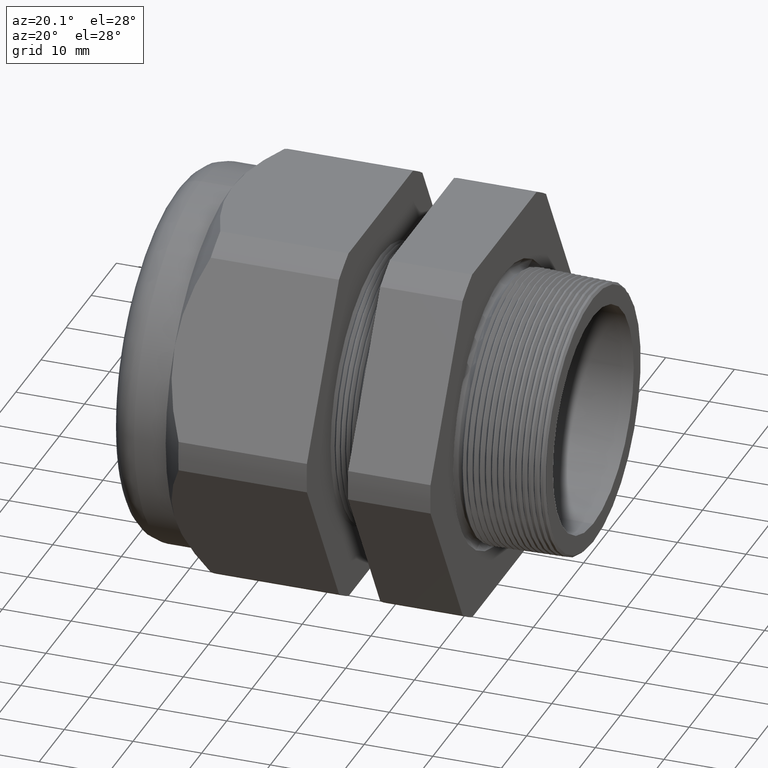
[diagram: clean part render]
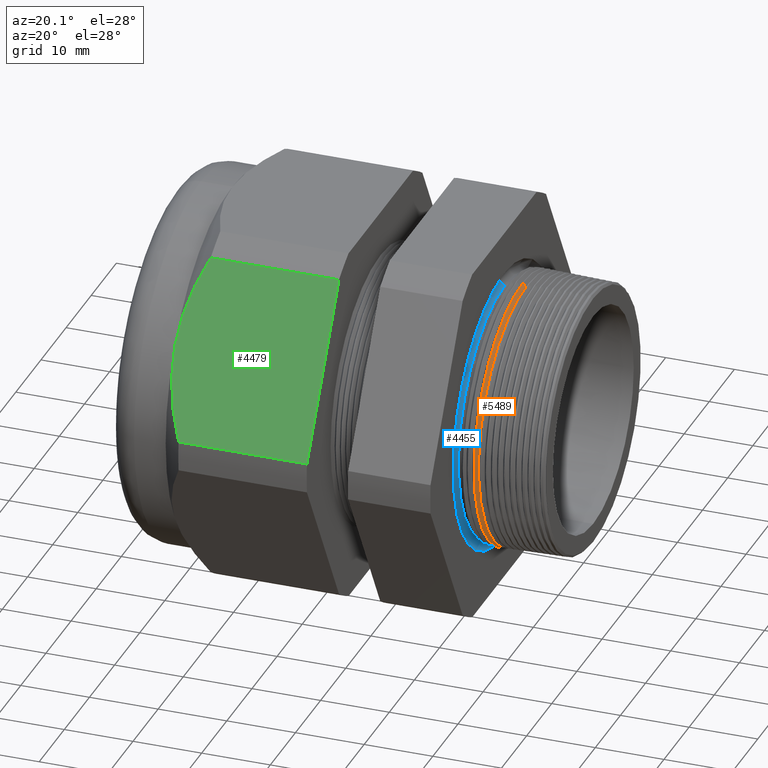
[diagram: same view with three faces highlighted in distinct colors, each labeled with its STEP entity id]
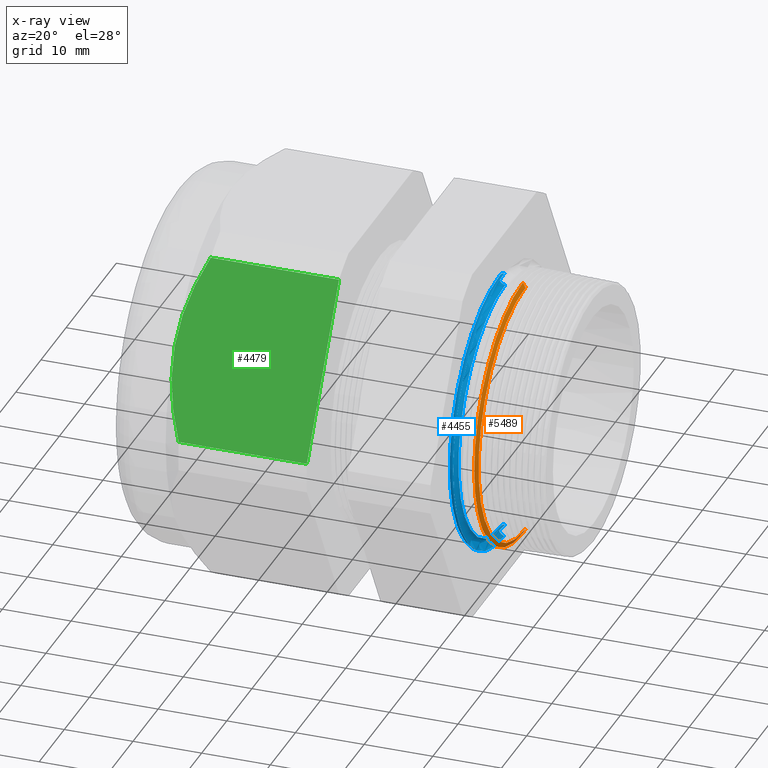
[diagram: x-ray of the same camera — body ghosted, the three highlighted faces saturated]
A machine part, auxiliary view with three faces highlighted in distinct colors.
The next image is the same camera in x-ray (body ghosted, the three faces saturated) — at least one of them is partly hidden behind the body in this view.
Their STEP definitions:

[orange] entity #5489 — the highlighted conical surface has half-angle 61.5 deg.
#254 = EDGE_CURVE ( 'NONE', #5358, #5374, #1065, .T. ) ;
#282 = VERTEX_POINT ( 'NONE', #1124 ) ;
#1056 = DIRECTION ( 'NONE',  ( 0.0000000000000000000, 0.0000000000000000000, 1.000000000000000000 ) ) ;
#1057 = DIRECTION ( 'NONE',  ( 1.000000000000000000, 0.0000000000000000000, 0.0000000000000000000 ) ) ;
#1058 = CARTESIAN_POINT ( 'NONE',  ( -0.2034856000580644300, 0.0000000000000000000, 0.0000000000000000000 ) ) ;
#1059 = AXIS2_PLACEMENT_3D ( 'NONE', #1058, #1057, #1056 ) ;
#1065 = CIRCLE ( 'NONE', #1059, 0.7636501677483175100 ) ;
#1124 = CARTESIAN_POINT ( 'NONE',  ( -0.1884707356790752100, 9.182685790054578000E-017, -0.7359962276773550600 ) ) ;
#2444 = CARTESIAN_POINT ( 'NONE',  ( -0.1884707356790752100, 0.0000000000000000000, 0.7359962276773550600 ) ) ;
#3742 = CARTESIAN_POINT ( 'NONE',  ( -0.2034856000580644300, 0.0000000000000000000, 0.7636501677483175100 ) ) ;
#3743 = DIRECTION ( 'NONE',  ( -0.4771587602596179000, 0.0000000000000000000, 0.8788171126619600500 ) ) ;
#3744 = VECTOR ( 'NONE', #3743, 39.37007874015748900 ) ;
#3745 = CARTESIAN_POINT ( 'NONE',  ( -0.2049999999999999600, 0.0000000000000000000, 0.7664393454711850900 ) ) ;
#3751 = LINE ( 'NONE', #3745, #3744 ) ;
#3783 = CARTESIAN_POINT ( 'NONE',  ( -0.2034856000580644300, 9.352496886341754700E-017, -0.7636501677483175100 ) ) ;
#3784 = DIRECTION ( 'NONE',  ( -0.4771587602596179000, 1.076240564057388100E-016, -0.8788171126619600500 ) ) ;
#3785 = VECTOR ( 'NONE', #3784, 39.37007874015748900 ) ;
#3786 = CARTESIAN_POINT ( 'NONE',  ( -0.2049999999999999600, 9.386174911718792200E-017, -0.7664393454711850900 ) ) ;
#3787 = LINE ( 'NONE', #3786, #3785 ) ;
#3963 = DIRECTION ( 'NONE',  ( 0.0000000000000000000, 0.0000000000000000000, -1.000000000000000000 ) ) ;
#3964 = DIRECTION ( 'NONE',  ( 1.000000000000000000, 0.0000000000000000000, 0.0000000000000000000 ) ) ;
#3965 = CARTESIAN_POINT ( 'NONE',  ( -0.1884707356790752100, 0.0000000000000000000, 0.0000000000000000000 ) ) ;
#3966 = AXIS2_PLACEMENT_3D ( 'NONE', #3965, #3964, #3963 ) ;
#3972 = CIRCLE ( 'NONE', #3966, 0.7359962276773550600 ) ;
#4001 = DIRECTION ( 'NONE',  ( 0.0000000000000000000, 0.0000000000000000000, 1.000000000000000000 ) ) ;
#4002 = DIRECTION ( 'NONE',  ( -1.000000000000000000, 0.0000000000000000000, 0.0000000000000000000 ) ) ;
#4003 = CARTESIAN_POINT ( 'NONE',  ( -0.2049999999999999600, 0.0000000000000000000, 0.0000000000000000000 ) ) ;
#4005 = AXIS2_PLACEMENT_3D ( 'NONE', #4003, #4002, #4001 ) ;
#4006 = CONICAL_SURFACE ( 'NONE', #4005, 0.7664393454711850900, 1.073377489976501800 ) ;
#4007 = FACE_OUTER_BOUND ( 'NONE', #5472, .T. ) ;
#4620 = VERTEX_POINT ( 'NONE', #2444 ) ;
#5356 = EDGE_CURVE ( 'NONE', #4620, #5358, #3751, .T. ) ;
#5358 = VERTEX_POINT ( 'NONE', #3742 ) ;
#5372 = EDGE_CURVE ( 'NONE', #282, #5374, #3787, .T. ) ;
#5374 = VERTEX_POINT ( 'NONE', #3783 ) ;
#5467 = EDGE_CURVE ( 'NONE', #4620, #282, #3972, .T. ) ;
#5472 = EDGE_LOOP ( 'NONE', ( #5500, #5477, #5487, #5475 ) ) ;
#5475 = ORIENTED_EDGE ( 'NONE', *, *, #254, .T. ) ;
#5477 = ORIENTED_EDGE ( 'NONE', *, *, #5467, .F. ) ;
#5487 = ORIENTED_EDGE ( 'NONE', *, *, #5356, .T. ) ;
#5489 = ADVANCED_FACE ( 'NONE', ( #4007 ), #4006, .T. ) ;
#5500 = ORIENTED_EDGE ( 'NONE', *, *, #5372, .F. ) ;

[blue] entity #4455 — the highlighted toroidal blend (fillet) surface has major radius 19.4676 mm and minor (blend) radius 0.889 mm.
#1994 = CARTESIAN_POINT ( 'NONE',  ( -0.3049999999999999400, 8.957548532017220700E-017, 0.7314393454711850500 ) ) ;
#2031 = CARTESIAN_POINT ( 'NONE',  ( -0.3049999999999999400, 0.0000000000000000000, -0.7314393454711850500 ) ) ;
#2133 = CARTESIAN_POINT ( 'NONE',  ( -0.3049999999999999400, 0.0000000000000000000, 0.0000000000000000000 ) ) ;
#2155 = FACE_OUTER_BOUND ( 'NONE', #5196, .T. ) ;
#2193 = DIRECTION ( 'NONE',  ( 0.0000000000000000000, 0.0000000000000000000, -1.000000000000000000 ) ) ;
#2194 = DIRECTION ( 'NONE',  ( 1.000000000000000000, 0.0000000000000000000, 0.0000000000000000000 ) ) ;
#2195 = AXIS2_PLACEMENT_3D ( 'NONE', #2133, #2194, #2193 ) ;
#2196 = TOROIDAL_SURFACE ( 'NONE', #2195, 0.7664393454711850900, 0.03499999999999997600 ) ;
#3434 = DIRECTION ( 'NONE',  ( 0.0000000000000000000, 1.224646799147352500E-016, 1.000000000000000000 ) ) ;
#3435 = DIRECTION ( 'NONE',  ( 0.0000000000000000000, 1.000000000000000000, -1.224646799147353200E-016 ) ) ;
#3436 = CARTESIAN_POINT ( 'NONE',  ( -0.3049999999999999400, 9.386174911718792200E-017, 0.7664393454711850900 ) ) ;
#3437 = AXIS2_PLACEMENT_3D ( 'NONE', #3436, #3435, #3434 ) ;
#3438 = CIRCLE ( 'NONE', #3437, 0.03500000000000003800 ) ;
#3439 = CARTESIAN_POINT ( 'NONE',  ( -0.3100000000000000000, 9.810405007208754400E-017, 0.8010803616225625800 ) ) ;
#3445 = DIRECTION ( 'NONE',  ( 0.0000000000000000000, 0.0000000000000000000, -1.000000000000000000 ) ) ;
#3446 = DIRECTION ( 'NONE',  ( 1.000000000000000000, 0.0000000000000000000, 0.0000000000000000000 ) ) ;
#3447 = AXIS2_PLACEMENT_3D ( 'NONE', #3452, #3446, #3445 ) ;
#3448 = CIRCLE ( 'NONE', #3447, 0.8010803616225625800 ) ;
#3452 = CARTESIAN_POINT ( 'NONE',  ( -0.3100000000000000000, 0.0000000000000000000, 0.0000000000000000000 ) ) ;
#3469 = DIRECTION ( 'NONE',  ( 0.0000000000000000000, 0.0000000000000000000, -1.000000000000000000 ) ) ;
#3470 = DIRECTION ( 'NONE',  ( 1.000000000000000000, 0.0000000000000000000, 0.0000000000000000000 ) ) ;
#3471 = CARTESIAN_POINT ( 'NONE',  ( -0.3049999999999999400, 0.0000000000000000000, 0.0000000000000000000 ) ) ;
#3472 = AXIS2_PLACEMENT_3D ( 'NONE', #3471, #3470, #3469 ) ;
#3473 = CIRCLE ( 'NONE', #3472, 0.7314393454711850500 ) ;
#3474 = DIRECTION ( 'NONE',  ( 0.0000000000000000000, 0.0000000000000000000, -1.000000000000000000 ) ) ;
#3475 = DIRECTION ( 'NONE',  ( 0.0000000000000000000, -1.000000000000000000, 0.0000000000000000000 ) ) ;
#3476 = CARTESIAN_POINT ( 'NONE',  ( -0.3049999999999999400, 0.0000000000000000000, -0.7664393454711850900 ) ) ;
#3477 = AXIS2_PLACEMENT_3D ( 'NONE', #3476, #3475, #3474 ) ;
#3478 = CIRCLE ( 'NONE', #3477, 0.03500000000000003800 ) ;
#3490 = CARTESIAN_POINT ( 'NONE',  ( -0.3100000000000000000, 0.0000000000000000000, -0.8010803616225625800 ) ) ;
#4382 = VERTEX_POINT ( 'NONE', #1994 ) ;
#4401 = VERTEX_POINT ( 'NONE', #2031 ) ;
#4453 = ORIENTED_EDGE ( 'NONE', *, *, #5200, .F. ) ;
#4455 = ADVANCED_FACE ( 'NONE', ( #2155 ), #2196, .F. ) ;
#5174 = ORIENTED_EDGE ( 'NONE', *, *, #5176, .T. ) ;
#5176 = EDGE_CURVE ( 'NONE', #5180, #5229, #3448, .T. ) ;
#5180 = VERTEX_POINT ( 'NONE', #3439 ) ;
#5185 = EDGE_CURVE ( 'NONE', #4382, #5180, #3438, .T. ) ;
#5187 = ORIENTED_EDGE ( 'NONE', *, *, #5185, .T. ) ;
#5196 = EDGE_LOOP ( 'NONE', ( #4453, #5187, #5174, #5202 ) ) ;
#5199 = EDGE_CURVE ( 'NONE', #4401, #5229, #3478, .T. ) ;
#5200 = EDGE_CURVE ( 'NONE', #4382, #4401, #3473, .T. ) ;
#5202 = ORIENTED_EDGE ( 'NONE', *, *, #5199, .F. ) ;
#5229 = VERTEX_POINT ( 'NONE', #3490 ) ;

[green] entity #4479 — the highlighted planar face has unit normal (0, -0.866, 0.5).
#6 = VERTEX_POINT ( 'NONE', #562 ) ;
#7 = VERTEX_POINT ( 'NONE', #561 ) ;
#15 = EDGE_CURVE ( 'NONE', #6, #7, #559, .T. ) ;
#48 = ORIENTED_EDGE ( 'NONE', *, *, #51, .F. ) ;
#51 = EDGE_CURVE ( 'NONE', #73, #6, #613, .T. ) ;
#52 = ORIENTED_EDGE ( 'NONE', *, *, #15, .F. ) ;
#57 = ORIENTED_EDGE ( 'NONE', *, *, #61, .T. ) ;
#59 = VERTEX_POINT ( 'NONE', #664 ) ;
#61 = EDGE_CURVE ( 'NONE', #59, #7, #660, .T. ) ;
#62 = VERTEX_POINT ( 'NONE', #662 ) ;
#65 = ORIENTED_EDGE ( 'NONE', *, *, #66, .T. ) ;
#66 = EDGE_CURVE ( 'NONE', #62, #59, #646, .T. ) ;
#72 = EDGE_CURVE ( 'NONE', #73, #62, #692, .T. ) ;
#73 = VERTEX_POINT ( 'NONE', #688 ) ;
#75 = ORIENTED_EDGE ( 'NONE', *, *, #72, .T. ) ;
#556 = DIRECTION ( 'NONE',  ( -1.000000000000000000, 0.0000000000000000000, 0.0000000000000000000 ) ) ;
#557 = VECTOR ( 'NONE', #556, 39.37007874015748100 ) ;
#558 = CARTESIAN_POINT ( 'NONE',  ( 0.2000000000000000400, -1.156720106887058100, 0.08650200473511256100 ) ) ;
#559 = LINE ( 'NONE', #558, #557 ) ;
#561 = CARTESIAN_POINT ( 'NONE',  ( -1.754342000000000300, -1.156720106887057800, 0.08650200473511252000 ) ) ;
#562 = CARTESIAN_POINT ( 'NONE',  ( -1.018802799999999800, -1.156720106887058100, 0.08650200473511256100 ) ) ;
#613 = LINE ( 'NONE', #672, #671 ) ;
#646 = B_SPLINE_CURVE_WITH_KNOTS ( 'NONE', 3,
 ( #704, #703, #702, #701, #700, #699, #698, #697, #696, #695 ),
 .UNSPECIFIED., .F., .F.,
 ( 4, 2, 2, 2, 4 ),
 ( 2.483246824854965000E-007, 0.006562468983848370100, 0.009843579313431312000, 0.01148413447822278100, 0.01312468964301425000 ),
 .UNSPECIFIED. ) ;
#651 = CARTESIAN_POINT ( 'NONE',  ( -1.754342000000000300, -1.156720106887057800, 0.08650200473511252000 ) ) ;
#652 = CARTESIAN_POINT ( 'NONE',  ( -1.771743928187930100, -1.136672950189631100, 0.1212246986823501300 ) ) ;
#653 = CARTESIAN_POINT ( 'NONE',  ( -1.787722809093209100, -1.116325425824559800, 0.1564676446908996300 ) ) ;
#654 = CARTESIAN_POINT ( 'NONE',  ( -1.816049984818948400, -1.075009018692886200, 0.2280297610291591200 ) ) ;
#655 = CARTESIAN_POINT ( 'NONE',  ( -1.828286401335962800, -1.054198518062447800, 0.2640746054520222700 ) ) ;
#656 = CARTESIAN_POINT ( 'NONE',  ( -1.858295772310753800, -0.9912375501002805800, 0.3731262008562124500 ) ) ;
#657 = CARTESIAN_POINT ( 'NONE',  ( -1.869292000000000800, -0.9485515436756352100, 0.4470605327559100700 ) ) ;
#658 = CARTESIAN_POINT ( 'NONE',  ( -1.869292000000000000, -0.9049965469547386300, 0.5224999999999996300 ) ) ;
#660 = B_SPLINE_CURVE_WITH_KNOTS ( 'NONE', 3,
 ( #658, #657, #656, #655, #654, #653, #652, #651 ),
 .UNSPECIFIED., .F., .F.,
 ( 4, 2, 2, 4 ),
 ( 0.01312468964301425000, 0.01968241065928899900, 0.02296127116742637000, 0.02624013167556374400 ),
 .UNSPECIFIED. ) ;
#662 = CARTESIAN_POINT ( 'NONE',  ( -1.754342000000000300, -0.6532729870224187600, 0.9584979952648864400 ) ) ;
#664 = CARTESIAN_POINT ( 'NONE',  ( -1.869292000000000000, -0.9049965469547386300, 0.5224999999999996300 ) ) ;
#670 = DIRECTION ( 'NONE',  ( 0.0000000000000000000, -0.4999999999999996100, -0.8660254037844388200 ) ) ;
#671 = VECTOR ( 'NONE', #670, 39.37007874015748900 ) ;
#672 = CARTESIAN_POINT ( 'NONE',  ( -1.018802799999999800, -0.7087465469547383800, 0.8624149709853914400 ) ) ;
#688 = CARTESIAN_POINT ( 'NONE',  ( -1.018802799999999800, -0.6532729870224188700, 0.9584979952648866600 ) ) ;
#689 = DIRECTION ( 'NONE',  ( -1.000000000000000000, 0.0000000000000000000, 0.0000000000000000000 ) ) ;
#690 = VECTOR ( 'NONE', #689, 39.37007874015748100 ) ;
#691 = CARTESIAN_POINT ( 'NONE',  ( 0.2000000000000000400, -0.6532729870224188700, 0.9584979952648866600 ) ) ;
#692 = LINE ( 'NONE', #691, #690 ) ;
#695 = CARTESIAN_POINT ( 'NONE',  ( -1.869292000000000000, -0.9049965469547386300, 0.5224999999999996300 ) ) ;
#696 = CARTESIAN_POINT ( 'NONE',  ( -1.869292000000000400, -0.8941003263552938000, 0.5413728076887161000 ) ) ;
#697 = CARTESIAN_POINT ( 'NONE',  ( -1.868602443834755700, -0.8831044440390649600, 0.5604182345344735900 ) ) ;
#698 = CARTESIAN_POINT ( 'NONE',  ( -1.865863667396531200, -0.8612576128887807800, 0.5982580560711432400 ) ) ;
#699 = CARTESIAN_POINT ( 'NONE',  ( -1.863823402605176500, -0.8504177933294219100, 0.6170331742928315500 ) ) ;
#700 = CARTESIAN_POINT ( 'NONE',  ( -1.855811452808128000, -0.8181339861334947500, 0.6729503686179362200 ) ) ;
#701 = CARTESIAN_POINT ( 'NONE',  ( -1.847948022855568300, -0.7969257234379633100, 0.7096841571468635000 ) ) ;
#702 = CARTESIAN_POINT ( 'NONE',  ( -1.817835050397151200, -0.7341137082222669600, 0.8184777588262391900 ) ) ;
#703 = CARTESIAN_POINT ( 'NONE',  ( -1.789102837835438100, -0.6933177427239284300, 0.8891384438131889600 ) ) ;
#704 = CARTESIAN_POINT ( 'NONE',  ( -1.754342000000000300, -0.6532729870224187600, 0.9584979952648864400 ) ) ;
#2197 = PLANE ( 'NONE',  #2266 ) ;
#2198 = FACE_OUTER_BOUND ( 'NONE', #4472, .T. ) ;
#2263 = DIRECTION ( 'NONE',  ( 0.0000000000000000000, -0.4999999999999996100, -0.8660254037844388200 ) ) ;
#2264 = DIRECTION ( 'NONE',  ( 0.0000000000000000000, -0.8660254037844388200, 0.4999999999999996100 ) ) ;
#2265 = CARTESIAN_POINT ( 'NONE',  ( 0.2000000000000000400, -1.156720106887057800, 0.08650200473511263100 ) ) ;
#2266 = AXIS2_PLACEMENT_3D ( 'NONE', #2265, #2264, #2263 ) ;
#4472 = EDGE_LOOP ( 'NONE', ( #75, #65, #57, #52, #48 ) ) ;
#4479 = ADVANCED_FACE ( 'NONE', ( #2198 ), #2197, .T. ) ;